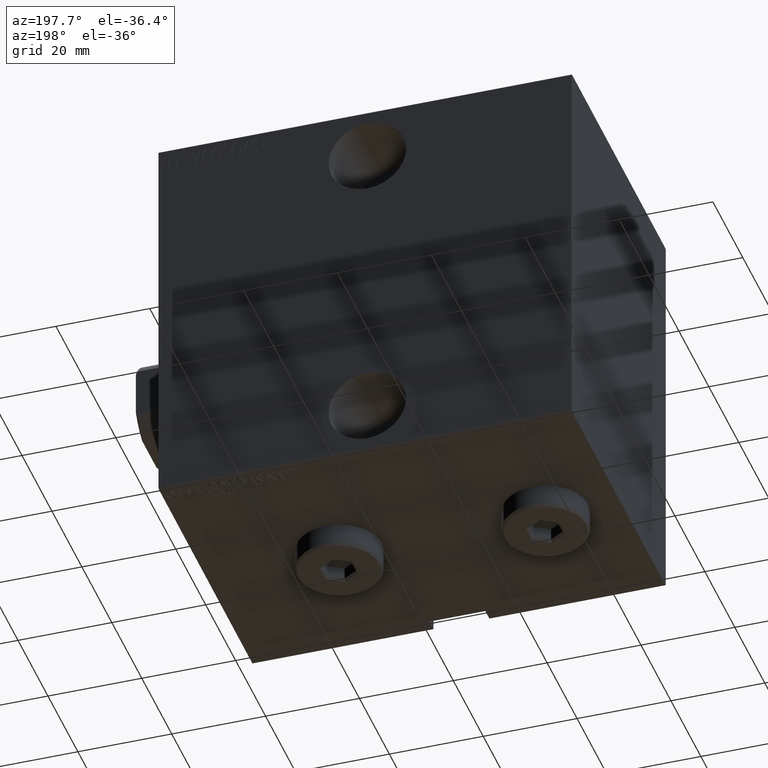
[diagram: clean part render]
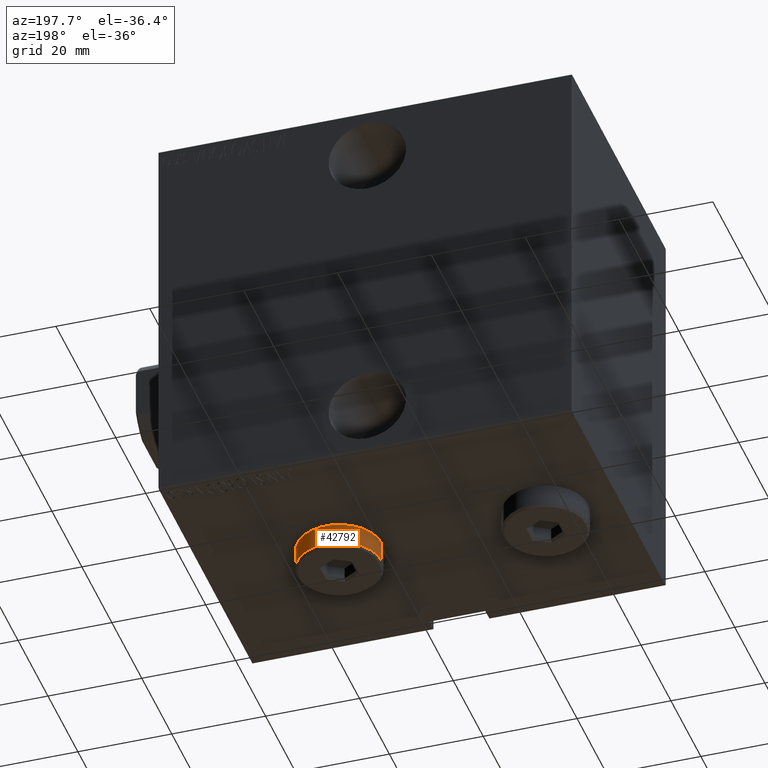
[diagram: same view with one face highlighted and labeled with its STEP entity id]
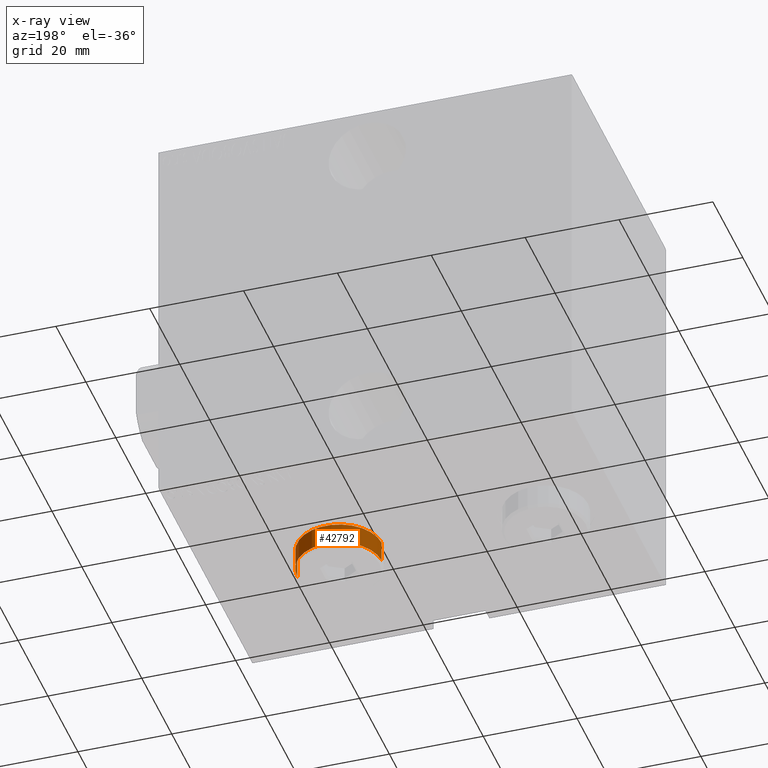
[diagram: x-ray of the same camera — body ghosted, the highlighted face saturated]
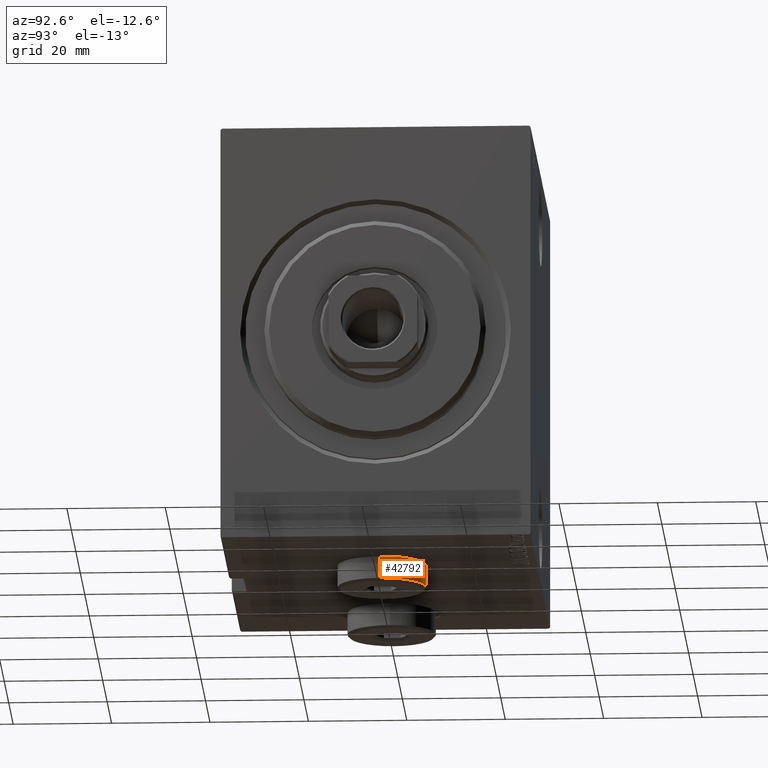
[diagram: same view with one face highlighted and labeled with its STEP entity id]
A machine part, auxiliary view. The second image highlights one B-rep face of the part: STEP entity #42792.
The next image is the same camera in x-ray: the body ghosted, the highlighted face saturated — about 0% of this face is hidden behind the body in this view.
A second angle (auxiliary view) of the same face is appended — the face is thin or edge-on in the first view.
In plain terms, the highlighted cylindrical surface (partial cylindrical patch) has radius 9 mm, axis along (0, 0, 1).
Its self-contained STEP definition (entity closure, byte-faithful):
#2470 = CYLINDRICAL_SURFACE ( 'NONE', #6441, 9.000000000000001776 ) ;
#3833 = EDGE_LOOP ( 'NONE', ( #41690, #7334, #10447, #4958 ) ) ;
#3999 = CARTESIAN_POINT ( 'NONE',  ( 9.000000000000001776, 1.102182119232617911E-15, 5.000000000000000000 ) ) ;
#4958 = ORIENTED_EDGE ( 'NONE', *, *, #14193, .T. ) ;
#5304 = LINE ( 'NONE', #39788, #36888 ) ;
#5383 = FACE_OUTER_BOUND ( 'NONE', #3833, .T. ) ;
#6441 = AXIS2_PLACEMENT_3D ( 'NONE', #18962, #39429, #43452 ) ;
#7334 = ORIENTED_EDGE ( 'NONE', *, *, #16192, .T. ) ;
#7466 = AXIS2_PLACEMENT_3D ( 'NONE', #28205, #31768, #11295 ) ;
#7620 = VERTEX_POINT ( 'NONE', #30652 ) ;
#8577 = CARTESIAN_POINT ( 'NONE',  ( 9.000000000000001776, 1.102182119232617911E-15, 4.500000000000006217 ) ) ;
#10311 = CIRCLE ( 'NONE', #7466, 9.000000000000001776 ) ;
#10447 = ORIENTED_EDGE ( 'NONE', *, *, #30243, .T. ) ;
#11295 = DIRECTION ( 'NONE',  ( 1.000000000000000000, 0.000000000000000000, 0.000000000000000000 ) ) ;
#12401 = CARTESIAN_POINT ( 'NONE',  ( 0.000000000000000000, 0.000000000000000000, 4.500000000000006217 ) ) ;
#12589 = EDGE_CURVE ( 'NONE', #17218, #34188, #33607, .T. ) ;
#14193 = EDGE_CURVE ( 'NONE', #7620, #34188, #10311, .T. ) ;
#15615 = CARTESIAN_POINT ( 'NONE',  ( -9.000000000000001776, 0.000000000000000000, 4.500000000000006217 ) ) ;
#16192 = EDGE_CURVE ( 'NONE', #17218, #39287, #41647, .T. ) ;
#17141 = DIRECTION ( 'NONE',  ( -0.000000000000000000, -0.000000000000000000, -1.000000000000000000 ) ) ;
#17218 = VERTEX_POINT ( 'NONE', #8577 ) ;
#18962 = CARTESIAN_POINT ( 'NONE',  ( 0.000000000000000000, 0.000000000000000000, 5.000000000000000000 ) ) ;
#23199 = CARTESIAN_POINT ( 'NONE',  ( 9.000000000000001776, 1.102182119232617911E-15, 0.000000000000000000 ) ) ;
#25302 = AXIS2_PLACEMENT_3D ( 'NONE', #12401, #32422, #32207 ) ;
#26418 = DIRECTION ( 'NONE',  ( -0.000000000000000000, -0.000000000000000000, -1.000000000000000000 ) ) ;
#28205 = CARTESIAN_POINT ( 'NONE',  ( 0.000000000000000000, 0.000000000000000000, 0.000000000000000000 ) ) ;
#30243 = EDGE_CURVE ( 'NONE', #39287, #7620, #5304, .T. ) ;
#30652 = CARTESIAN_POINT ( 'NONE',  ( -9.000000000000001776, 0.000000000000000000, 0.000000000000000000 ) ) ;
#31768 = DIRECTION ( 'NONE',  ( 0.000000000000000000, 0.000000000000000000, 1.000000000000000000 ) ) ;
#32207 = DIRECTION ( 'NONE',  ( 1.000000000000000000, 0.000000000000000000, 0.000000000000000000 ) ) ;
#32422 = DIRECTION ( 'NONE',  ( 0.000000000000000000, 0.000000000000000000, -1.000000000000000000 ) ) ;
#33607 = LINE ( 'NONE', #3999, #43000 ) ;
#34188 = VERTEX_POINT ( 'NONE', #23199 ) ;
#36888 = VECTOR ( 'NONE', #26418, 1000.000000000000000 ) ;
#39287 = VERTEX_POINT ( 'NONE', #15615 ) ;
#39429 = DIRECTION ( 'NONE',  ( -0.000000000000000000, -0.000000000000000000, -1.000000000000000000 ) ) ;
#39788 = CARTESIAN_POINT ( 'NONE',  ( -9.000000000000001776, 0.000000000000000000, 5.000000000000000000 ) ) ;
#41647 = CIRCLE ( 'NONE', #25302, 9.000000000000001776 ) ;
#41690 = ORIENTED_EDGE ( 'NONE', *, *, #12589, .F. ) ;
#42792 = ADVANCED_FACE ( 'NONE', ( #5383 ), #2470, .T. ) ;
#43000 = VECTOR ( 'NONE', #17141, 1000.000000000000000 ) ;
#43452 = DIRECTION ( 'NONE',  ( -1.000000000000000000, 0.000000000000000000, 0.000000000000000000 ) ) ;